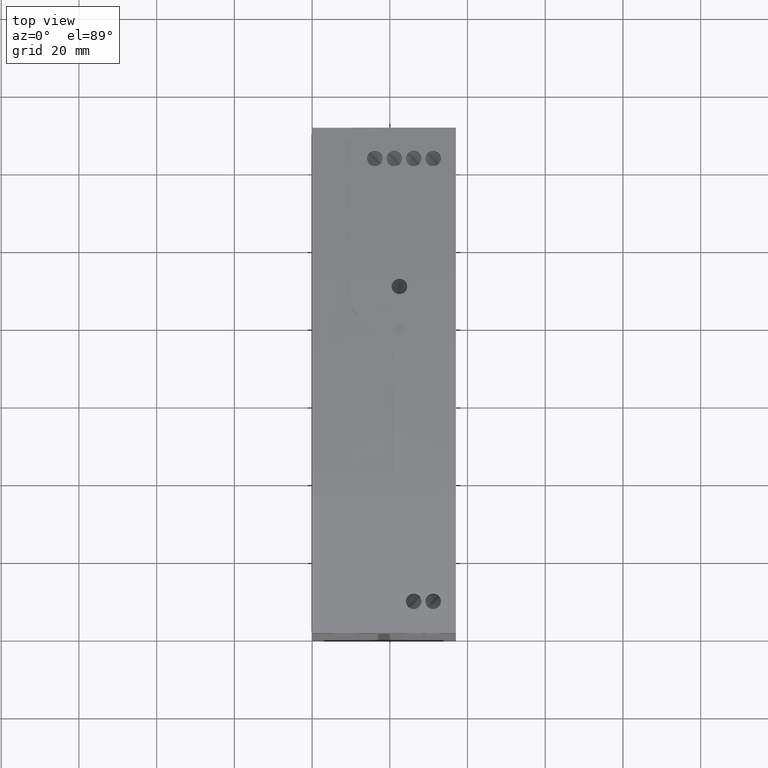
[diagram: clean part render]
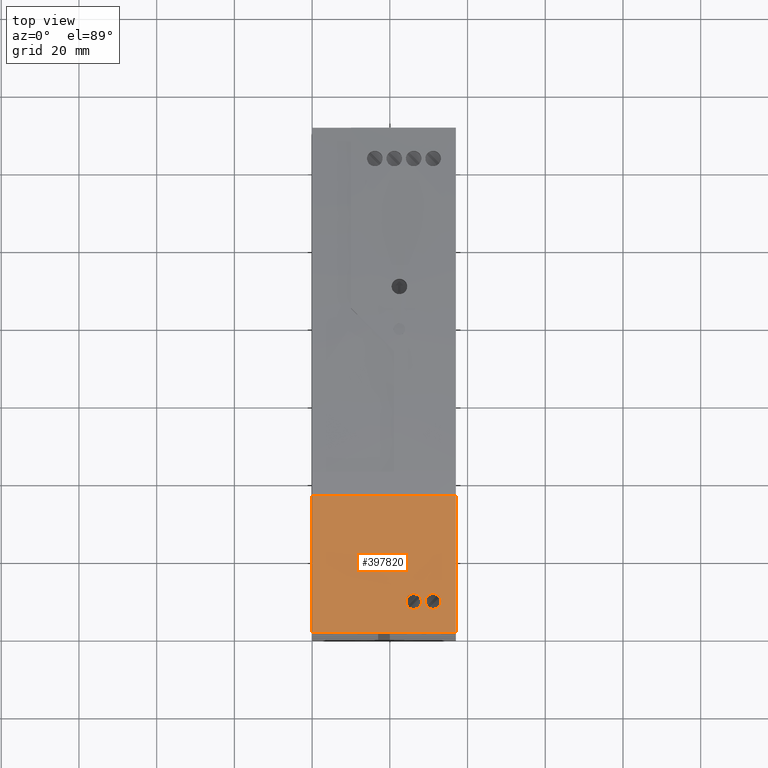
[diagram: same view with one face highlighted and labeled with its STEP entity id]
A machine part, top view. The second image highlights one B-rep face of the part: STEP entity #397820.
In plain terms, the highlighted cylindrical surface (partial cylindrical patch) has radius 200 mm, axis along (1, 0, 0).
Its self-contained STEP definition (entity closure, byte-faithful):
#379630=CARTESIAN_POINT('',(-44.7034385856615,125.,8.));
#379640=VERTEX_POINT('',#379630);
#379690=CARTESIAN_POINT('',(-12.3563552538809,-72.36683155973,8.));
#379700=DIRECTION('',(0.,0.,1.));
#379710=DIRECTION('',(0.,-1.,0.));
#379720=AXIS2_PLACEMENT_3D('',#379690,#379700,#379710);
#379730=CIRCLE('',#379720,200.);
#379740=CARTESIAN_POINT('',(-79.8999999999998,115.882620111211,8.));
#379750=VERTEX_POINT('',#379740);
#379760=EDGE_CURVE('',#379640,#379750,#379730,.T.);
#380550=CARTESIAN_POINT('',(-44.7034385856614,125.,45.));
#380560=VERTEX_POINT('',#380550);
#380590=CARTESIAN_POINT('',(-44.7034385856615,125.,8.));
#380600=DIRECTION('',(0.,0.,-1.));
#380610=VECTOR('',#380600,1.);
#380620=LINE('',#380590,#380610);
#380630=EDGE_CURVE('',#380560,#379640,#380620,.T.);
#396130=CARTESIAN_POINT('',(-12.3563552538809,-72.36683155973,8.));
#396140=DIRECTION('',(0.,0.,1.));
#396150=DIRECTION('',(0.,-1.,0.));
#396160=AXIS2_PLACEMENT_3D('',#396130,#396140,#396150);
#396170=CYLINDRICAL_SURFACE('',#396160,200.);
#396180=ORIENTED_EDGE('',*,*,#380630,.T.);
#396190=CARTESIAN_POINT('',(-12.3563552538809,-72.36683155973,45.));
#396200=DIRECTION('',(0.,0.,1.));
#396210=DIRECTION('',(0.,-1.,0.));
#396220=AXIS2_PLACEMENT_3D('',#396190,#396200,#396210);
#396230=CIRCLE('',#396220,200.);
#396240=CARTESIAN_POINT('',(-79.8999999999997,115.882620111211,45.));
#396250=VERTEX_POINT('',#396240);
#396260=EDGE_CURVE('',#380560,#396250,#396230,.T.);
#396270=ORIENTED_EDGE('',*,*,#396260,.F.);
#396280=CARTESIAN_POINT('',(-79.8999999999999,115.882620111211,0.));
#396290=DIRECTION('',(0.,0.,1.));
#396300=VECTOR('',#396290,1.);
#396310=LINE('',#396280,#396300);
#396320=EDGE_CURVE('',#379750,#396250,#396310,.T.);
#396330=ORIENTED_EDGE('',*,*,#396320,.T.);
#396340=ORIENTED_EDGE('',*,*,#379760,.T.);
#396350=EDGE_LOOP('',(#396340,#396330,#396270,#396180));
#396360=FACE_OUTER_BOUND('',#396350,.T.);
#396370=CARTESIAN_POINT('',(-12.3563552538809,-72.36683155973,0.));
#396380=DIRECTION('',(0.,0.,1.));
#396390=DIRECTION('',(0.,-1.,0.));
#396400=AXIS2_PLACEMENT_3D('',#396370,#396380,#396390);
#396410=CYLINDRICAL_SURFACE('',#396400,200.);
#396420=CARTESIAN_POINT('',(-71.8999999999999,111.17867513459,34.125));
#396430=DIRECTION('',(0.,1.,0.));
#396440=DIRECTION('',(-0.707106781186498,0.,0.707106781186598));
#396450=AXIS2_PLACEMENT_3D('',#396420,#396430,#396440);
#396460=CYLINDRICAL_SURFACE('',#396450,2.);
#396470=CARTESIAN_POINT('',(-70.26012259502,119.067631710871,
35.2699026581489));
#396480=CARTESIAN_POINT('',(-70.1276413493798,119.10770371825,
35.0801459135361));
#396490=CARTESIAN_POINT('',(-70.0276935745189,119.137791500813,
34.8655383944786));
#396500=CARTESIAN_POINT('',(-69.9677585033385,119.155820405066,
34.6411809746396));
#396510=CARTESIAN_POINT('',(-69.9074984626188,119.173947062514,
34.4156070829429));
#396520=CARTESIAN_POINT('',(-69.8871413121287,119.180053372283,
34.1796818788899));
#396530=CARTESIAN_POINT('',(-69.9079399670088,119.173804068869,
33.946963978477));
#396540=CARTESIAN_POINT('',(-69.928874263934,119.167514009535,
33.7127283678027));
#396550=CARTESIAN_POINT('',(-69.9915823301749,119.148679907569,
33.483646586685));
#396560=CARTESIAN_POINT('',(-70.0898423805004,119.119054249644,
33.2745122619531));
#396570=CARTESIAN_POINT('',(-70.188774300362,119.089226021325,
33.0639479462813));
#396580=CARTESIAN_POINT('',(-70.3246942991464,119.048162663526,
32.8718785761073));
#396590=CARTESIAN_POINT('',(-70.4857864376269,118.9992292511,
32.7107864376268));
#396600=B_SPLINE_CURVE_WITH_KNOTS('',3,(#396470,#396480,#396490,#396500,
#396510,#396520,#396530,#396540,#396550,#396560,#396570,#396580,#396590)
,.UNSPECIFIED.,.F.,.F.,(4,3,3,3,4),(0.,0.702709399799403,
1.40361726452928,2.10624032749539,2.80907350096329),.UNSPECIFIED.);
#396610=SURFACE_CURVE('',#396600,(#396410,#396460),.CURVE_3D.);
#396620=CARTESIAN_POINT('',(-70.26012259502,119.067631710871,
35.2699026581489));
#396630=VERTEX_POINT('',#396620);
#396640=CARTESIAN_POINT('',(-70.4857864376269,118.9992292511,
32.7107864376268));
#396650=VERTEX_POINT('',#396640);
#396660=EDGE_CURVE('',#396630,#396650,#396610,.T.);
#396670=ORIENTED_EDGE('',*,*,#396660,.F.);
#396680=CARTESIAN_POINT('',(-70.4857864376269,118.9992292511,
32.7107864376268));
#396690=CARTESIAN_POINT('',(-70.6942739520908,118.935899000305,
32.5022989231629));
#396700=CARTESIAN_POINT('',(-70.9474903388663,118.858582931689,
32.3429591689414));
#396710=CARTESIAN_POINT('',(-71.2182414693129,118.775205551842,
32.2447858351146));
#396720=CARTESIAN_POINT('',(-71.489661286959,118.691622250835,
32.1463700378434));
#396730=CARTESIAN_POINT('',(-71.7785707200046,118.601986797385,
32.1082891569121));
#396740=CARTESIAN_POINT('',(-72.0637355671304,118.512786881132,
32.1317136020992));
#396750=CARTESIAN_POINT('',(-72.5135793191927,118.372075200098,
32.1686653527064));
#396760=CARTESIAN_POINT('',(-72.945294549858,118.235119567661,
32.3583983061468));
#396770=CARTESIAN_POINT('',(-73.2797998403267,118.128139239297,
32.677190481923));
#396780=CARTESIAN_POINT('',(-73.5894403338412,118.029111084542,
32.9722858644133));
#396790=CARTESIAN_POINT('',(-73.8026003219095,117.960162179089,
33.3678955169588));
#396800=CARTESIAN_POINT('',(-73.8736694899416,117.937188495501,
33.801536332066));
#396810=CARTESIAN_POINT('',(-73.9254660224376,117.920444847285,
34.1175818296178));
#396820=CARTESIAN_POINT('',(-73.9004855688058,117.928546151436,
34.4408002011162));
#396830=CARTESIAN_POINT('',(-73.8017973814934,117.960406747724,
34.7440046201318));
#396840=CARTESIAN_POINT('',(-73.7035200548541,117.992134701327,
35.0459467323296));
#396850=CARTESIAN_POINT('',(-73.53506752227,118.046453000077,
35.3183596024762));
#396860=CARTESIAN_POINT('',(-73.3142135623729,118.117129734763,
35.5392135623732));
#396870=B_SPLINE_CURVE_WITH_KNOTS('',3,(#396680,#396690,#396700,#396710,
#396720,#396730,#396740,#396750,#396760,#396770,#396780,#396790,#396800,
#396810,#396820,#396830,#396840,#396850,#396860),.UNSPECIFIED.,.F.,.F.,(
4,3,3,3,3,3,4),(0.,0.903504806448945,1.80231724861397,3.21492457277614,
4.52459767806488,5.48001349403524,6.43502657059226),.UNSPECIFIED.);
#396880=SURFACE_CURVE('',#396870,(#396410,#396460),.CURVE_3D.);
#396890=CARTESIAN_POINT('',(-73.3142135623729,118.117129734763,
35.5392135623732));
#396900=VERTEX_POINT('',#396890);
#396910=EDGE_CURVE('',#396650,#396900,#396880,.T.);
#396920=ORIENTED_EDGE('',*,*,#396910,.F.);
#396930=CARTESIAN_POINT('',(-73.3142135623729,118.117129734763,
35.5392135623732));
#396940=CARTESIAN_POINT('',(-73.1064511971229,118.183616953617,
35.7469759276232));
#396950=CARTESIAN_POINT('',(-72.8537618731802,118.264083537762,
35.9067605209815));
#396960=CARTESIAN_POINT('',(-72.5806988654375,118.350310922421,
36.0055980576913));
#396970=CARTESIAN_POINT('',(-72.309054920007,118.436090197932,
36.1039219524232));
#396980=CARTESIAN_POINT('',(-72.0188757494216,118.527048436834,
36.1420038557061));
#396990=CARTESIAN_POINT('',(-71.7327645619598,118.616000175689,
36.1179958124049));
#397000=CARTESIAN_POINT('',(-71.4454350747793,118.70533068295,
36.093885539643));
#397010=CARTESIAN_POINT('',(-71.1610965447357,118.792976862896,
36.0061800990874));
#397020=CARTESIAN_POINT('',(-70.9081957613923,118.870408467371,
35.8617568489227));
#397030=CARTESIAN_POINT('',(-70.6539685312709,118.948246195151,
35.7165761089934));
#397040=CARTESIAN_POINT('',(-70.4301496838418,119.016203097524,
35.513437406897));
#397050=CARTESIAN_POINT('',(-70.26012259502,119.067631710871,
35.2699026581489));
#397060=B_SPLINE_CURVE_WITH_KNOTS('',3,(#396930,#396940,#396950,#396960,
#396970,#396980,#396990,#397000,#397010,#397020,#397030,#397040,#397050)
,.UNSPECIFIED.,.F.,.F.,(4,3,3,3,4),(0.,0.906890490167263,
1.80893263939839,2.71574300999357,3.62261603994462),.UNSPECIFIED.);
#397070=SURFACE_CURVE('',#397060,(#396410,#396460),.CURVE_3D.);
#397080=EDGE_CURVE('',#396900,#396630,#397070,.T.);
#397090=ORIENTED_EDGE('',*,*,#397080,.F.);
#397100=EDGE_LOOP('',(#397090,#396920,#396670));
#397110=FACE_BOUND('',#397100,.T.);
#397120=CARTESIAN_POINT('',(-71.8999999999999,111.17867513459,39.125));
#397130=DIRECTION('',(0.,1.,0.));
#397140=DIRECTION('',(-0.707106781186498,0.,0.707106781186598));
#397150=AXIS2_PLACEMENT_3D('',#397120,#397130,#397140);
#397160=CYLINDRICAL_SURFACE('',#397150,2.);
#397170=CARTESIAN_POINT('',(-73.5398774049798,118.044766346453,
37.9800973418511));
#397180=CARTESIAN_POINT('',(-73.6721111094663,118.002276687858,
38.1694995260637));
#397190=CARTESIAN_POINT('',(-73.7720555040021,117.970016526328,
38.383834601415));
#397200=CARTESIAN_POINT('',(-73.8320624830029,117.950633273846,
38.608149381569));
#397210=CARTESIAN_POINT('',(-73.8923990508423,117.931143558685,
38.8336962125463));
#397220=CARTESIAN_POINT('',(-73.912867064273,117.924514373459,
39.0718519688043));
#397230=CARTESIAN_POINT('',(-73.8919488181056,117.931278585112,
39.3042760609989));
#397240=CARTESIAN_POINT('',(-73.8710144718044,117.938048002972,
39.5368790429035));
#397250=CARTESIAN_POINT('',(-73.8083869365855,117.958307549204,
39.7667815333295));
#397260=CARTESIAN_POINT('',(-73.7095901632158,117.990150361501,
39.9766944529538));
#397270=CARTESIAN_POINT('',(-73.6112998868257,118.021829926683,
40.1855312214432));
#397280=CARTESIAN_POINT('',(-73.4761443948961,118.06530932596,
40.37728272985));
#397290=CARTESIAN_POINT('',(-73.3142135623729,118.117129734763,
40.5392135623732));
#397300=B_SPLINE_CURVE_WITH_KNOTS('',3,(#397170,#397180,#397190,#397200,
#397210,#397220,#397230,#397240,#397250,#397260,#397270,#397280,#397290)
,.UNSPECIFIED.,.F.,.F.,(4,3,3,3,4),(0.,0.702819951852705,
1.40575324111258,2.10883836384871,2.81162620340734),.UNSPECIFIED.);
#397310=SURFACE_CURVE('',#397300,(#396410,#397160),.CURVE_3D.);
#397320=CARTESIAN_POINT('',(-73.5398774049798,118.044766346453,
37.9800973418511));
#397330=VERTEX_POINT('',#397320);
#397340=CARTESIAN_POINT('',(-73.3142135623729,118.117129734763,
40.5392135623732));
#397350=VERTEX_POINT('',#397340);
#397360=EDGE_CURVE('',#397330,#397350,#397310,.T.);
#397370=ORIENTED_EDGE('',*,*,#397360,.F.);
#397380=CARTESIAN_POINT('',(-73.3142135623729,118.117129734763,
40.5392135623732));
#397390=CARTESIAN_POINT('',(-73.1064119054442,118.183629527571,
40.7470152193019));
#397400=CARTESIAN_POINT('',(-72.8536668397097,118.264113787343,
40.9068199571241));
#397410=CARTESIAN_POINT('',(-72.5805463854481,118.350359072233,
41.0056532421618));
#397420=CARTESIAN_POINT('',(-72.308844118185,118.436156525626,
41.1039733320958));
#397430=CARTESIAN_POINT('',(-72.0186051725083,118.527133086232,
41.1420275483043));
#397440=CARTESIAN_POINT('',(-71.7324435111509,118.616099989832,
41.1179688464812));
#397450=CARTESIAN_POINT('',(-71.2845600534826,118.755345772143,
41.0803135766997));
#397460=CARTESIAN_POINT('',(-70.8543090740234,118.887217073012,
40.8910896389975));
#397470=CARTESIAN_POINT('',(-70.5205053604202,118.98867957696,
40.5731003208933));
#397480=CARTESIAN_POINT('',(-70.2094456754916,119.083228838169,
40.2767775028142));
#397490=CARTESIAN_POINT('',(-69.9963225715455,119.147239936756,
39.8794918967095));
#397500=CARTESIAN_POINT('',(-69.9258598373501,119.168418830411,
39.4455785679251));
#397510=CARTESIAN_POINT('',(-69.8749513329928,119.18372033428,
39.1320812442501));
#397520=CARTESIAN_POINT('',(-69.899654321992,119.176321215392,
38.8083754586418));
#397530=CARTESIAN_POINT('',(-69.9984401470363,119.14658846396,
38.5052660848421));
#397540=CARTESIAN_POINT('',(-70.0963564280451,119.117117429598,
38.2048247754932));
#397550=CARTESIAN_POINT('',(-70.2660787099157,119.065967758358,
37.9304941653379));
#397560=CARTESIAN_POINT('',(-70.4857864376269,118.9992292511,
37.7107864376268));
#397570=B_SPLINE_CURVE_WITH_KNOTS('',3,(#397380,#397390,#397400,#397410,
#397420,#397430,#397440,#397450,#397460,#397470,#397480,#397490,#397500,
#397510,#397520,#397530,#397540,#397550,#397560),.UNSPECIFIED.,.F.,.F.,(
4,3,3,3,3,3,4),(0.,0.907059654044017,1.80926994545537,3.21459610625327,
4.52586131645647,5.47896414139141,6.43168157303122),.UNSPECIFIED.);
#397580=SURFACE_CURVE('',#397570,(#396410,#397160),.CURVE_3D.);
#397590=CARTESIAN_POINT('',(-70.4857864376269,118.9992292511,
37.7107864376268));
#397600=VERTEX_POINT('',#397590);
#397610=EDGE_CURVE('',#397350,#397600,#397580,.T.);
#397620=ORIENTED_EDGE('',*,*,#397610,.F.);
#397630=CARTESIAN_POINT('',(-70.4857864376269,118.9992292511,
37.7107864376268));
#397640=CARTESIAN_POINT('',(-70.6950699550605,118.935657206125,
37.5015029201931));
#397650=CARTESIAN_POINT('',(-70.9493809563012,118.858005441417,
37.3417779376689));
#397660=CARTESIAN_POINT('',(-71.2212906392517,118.774266538183,
37.243683013516));
#397670=CARTESIAN_POINT('',(-71.493875205222,118.690319794011,
37.1453446166119));
#397680=CARTESIAN_POINT('',(-71.7839802285505,118.600305129758,
37.1078169538714));
#397690=CARTESIAN_POINT('',(-72.0701463108339,118.510781474399,
37.1322505845165));
#397700=CARTESIAN_POINT('',(-72.3573856314564,118.420922069189,
37.156775851141));
#397710=CARTESIAN_POINT('',(-72.6411607627744,118.331391417245,
37.2448092778244));
#397720=CARTESIAN_POINT('',(-72.8933641439639,118.251296000694,
37.3891348907572));
#397730=CARTESIAN_POINT('',(-73.1468622686295,118.170789396086,
37.5342014320823));
#397740=CARTESIAN_POINT('',(-73.3701361940761,118.099308009101,
37.7369720643668));
#397750=CARTESIAN_POINT('',(-73.5398774049798,118.044766346453,
37.9800973418511));
#397760=B_SPLINE_CURVE_WITH_KNOTS('',3,(#397630,#397640,#397650,#397660,
#397670,#397680,#397690,#397700,#397710,#397720,#397730,#397740,#397750)
,.UNSPECIFIED.,.F.,.F.,(4,3,3,3,4),(0.,0.906880618721581,
1.80905607087502,2.71620759585668,3.62339452332222),.UNSPECIFIED.);
#397770=SURFACE_CURVE('',#397760,(#396410,#397160),.CURVE_3D.);
#397780=EDGE_CURVE('',#397600,#397330,#397770,.T.);
#397790=ORIENTED_EDGE('',*,*,#397780,.F.);
#397800=EDGE_LOOP('',(#397790,#397620,#397370));
#397810=FACE_BOUND('',#397800,.T.);
#397820=ADVANCED_FACE('',(#396360,#397110,#397810),#396170,.T.);